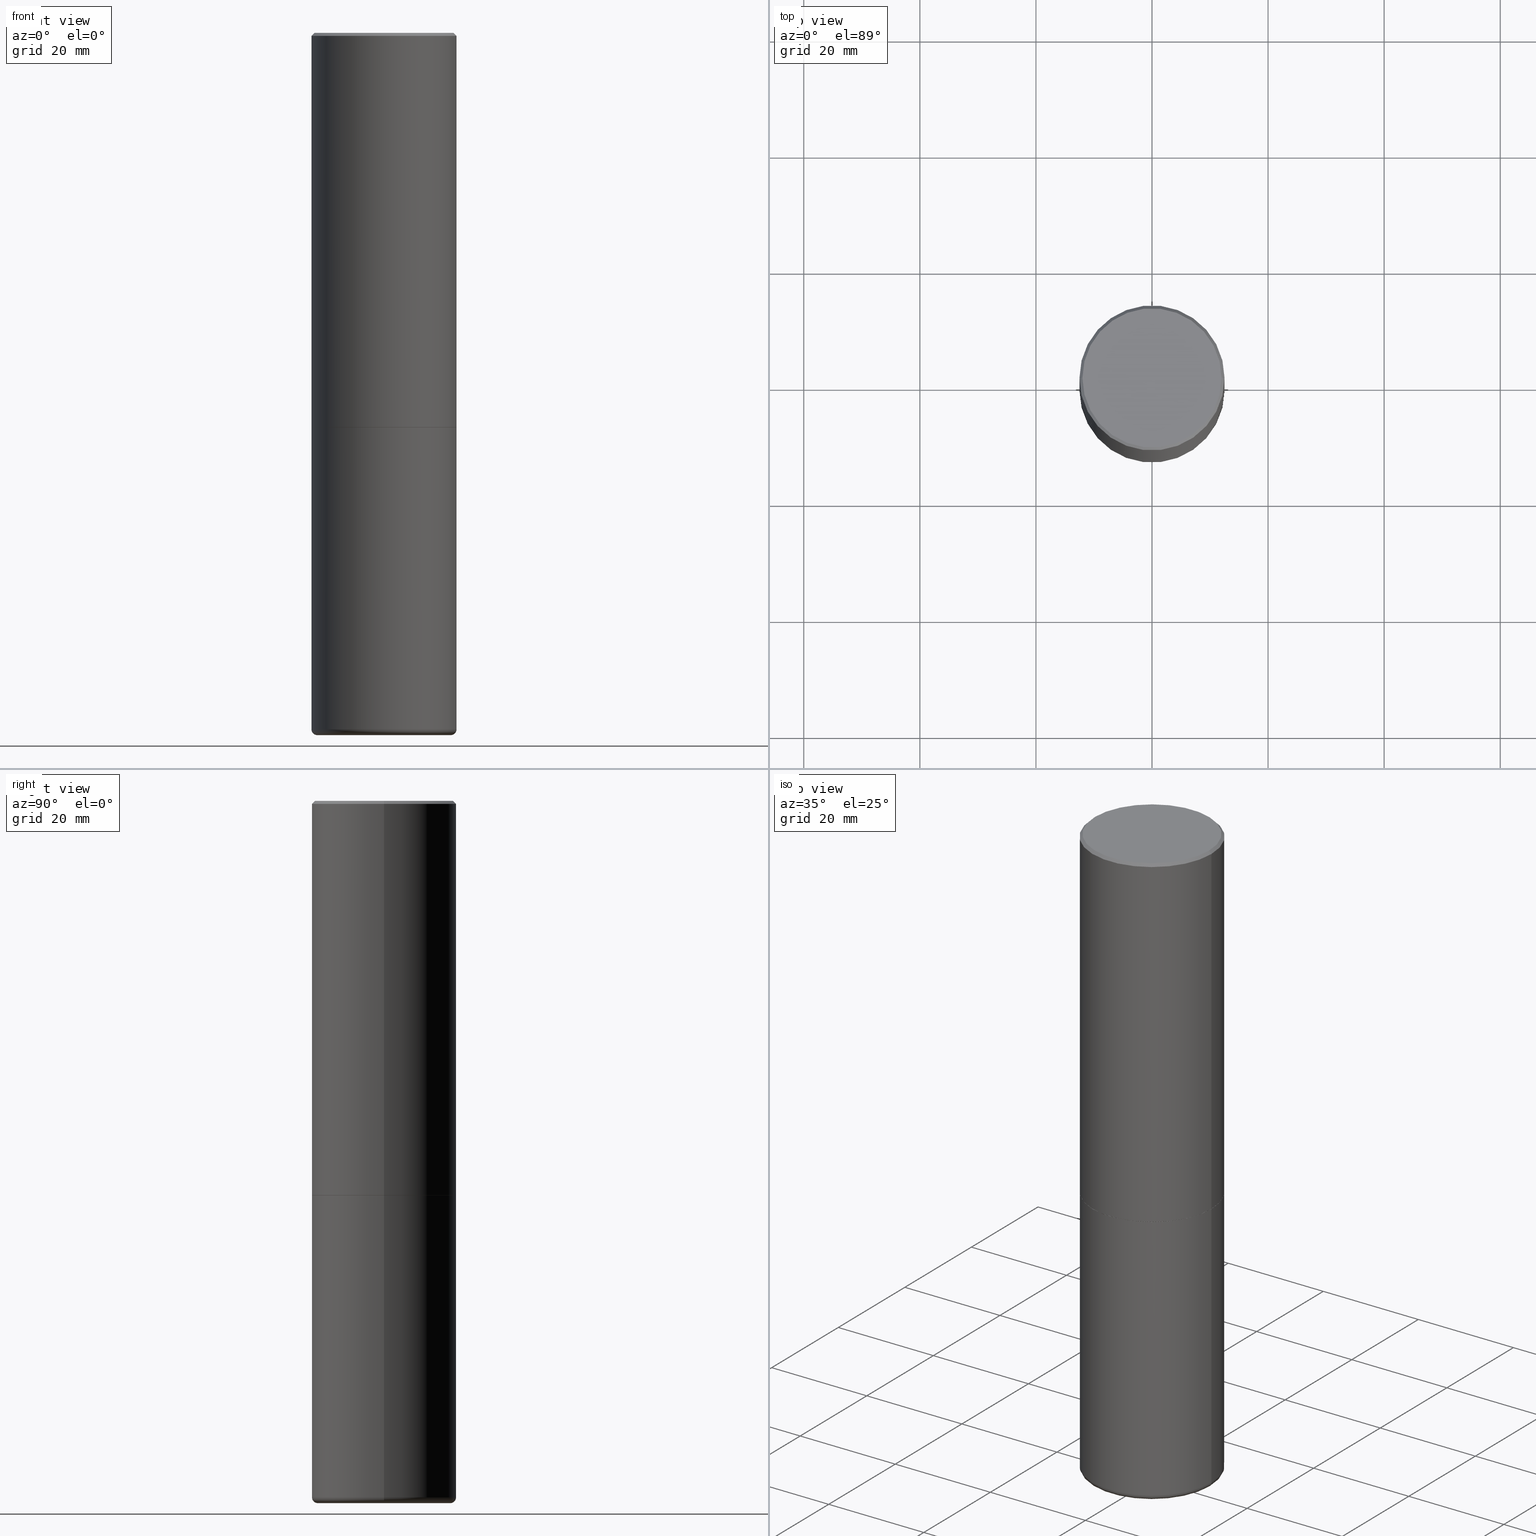
[diagram: canonical four-view strip — front | top / right | iso, engineering-drawing reading convention]
A machine part, canonical four-view strip (front | top / right | iso — engineering-drawing reading convention). The complete STEP part file that produces these views, byte-faithful:
ISO-10303-21;
HEADER;
FILE_DESCRIPTION (( 'STEP AP203' ),
    '1' );
FILE_NAME ('47085.STEP',
    '2024-03-05T19:11:22',
    ( '' ),
    ( '' ),
    'SwSTEP 2.0',
    'SolidWorks 2023',
    '' );
FILE_SCHEMA (( 'CONFIG_CONTROL_DESIGN' ));
ENDSEC;

DATA;
#1 = PRODUCT_RELATED_PRODUCT_CATEGORY ( 'detail', '', ( #391 ) ) ;
#2 = DIRECTION ( 'NONE',  ( -2.445468806185136597E-29, 3.491481338843145583E-15, 1.000000000000000000 ) ) ;
#3 = AXIS2_PLACEMENT_3D ( 'NONE', #198, #6, #106 ) ;
#4 = FACE_OUTER_BOUND ( 'NONE', #144, .T. ) ;
#5 = DATE_TIME_ROLE ( 'classification_date' ) ;
#6 = DIRECTION ( 'NONE',  ( 2.438088387897960049E-29, -3.491481338843145188E-15, -1.000000000000000000 ) ) ;
#7 = EDGE_CURVE ( 'NONE', #274, #379, #411, .T. ) ;
#8 = AXIS2_PLACEMENT_3D ( 'NONE', #357, #28, #53 ) ;
#9 = SECURITY_CLASSIFICATION_LEVEL ( 'unclassified' ) ;
#10 = FACE_OUTER_BOUND ( 'NONE', #61, .T. ) ;
#11 = AXIS2_PLACEMENT_3D ( 'NONE', #130, #239, #189 ) ;
#12 = ORIENTED_EDGE ( 'NONE', *, *, #388, .T. ) ;
#13 = DIRECTION ( 'NONE',  ( 7.105427357601001859E-15, 1.000000000000000000, -3.491481338843145583E-15 ) ) ;
#14 = ORIENTED_EDGE ( 'NONE', *, *, #266, .F. ) ;
#15 = FACE_OUTER_BOUND ( 'NONE', #282, .T. ) ;
#16 = ORIENTED_EDGE ( 'NONE', *, *, #108, .T. ) ;
#17 = CARTESIAN_POINT ( 'NONE',  ( 6.547009087918846705E-29, -9.347393840350866318E-15, -2.677199999999999580 ) ) ;
#18 = AXIS2_PLACEMENT_3D ( 'NONE', #47, #276, #230 ) ;
#19 = ORGANIZATION ( 'UNSPECIFIED', 'UNSPECIFIED', '' ) ;
#20 = CARTESIAN_POINT ( 'NONE',  ( 1.164972429890475298E-28, -1.663271880198097531E-14, -4.763799999999999812 ) ) ;
#21 = ORIENTED_EDGE ( 'NONE', *, *, #343, .T. ) ;
#22 = ADVANCED_FACE ( 'NONE', ( #10 ), #139, .T. ) ;
#23 = CARTESIAN_POINT ( 'NONE',  ( -0.4921499999999999764, -1.299821836318722241E-14, -4.724399999999999267 ) ) ;
#24 = ORIENTED_EDGE ( 'NONE', *, *, #273, .T. ) ;
#25 = ORIENTED_EDGE ( 'NONE', *, *, #261, .T. ) ;
#26 = EDGE_CURVE ( 'NONE', #81, #330, #170, .T. ) ;
#27 = PRODUCT_DEFINITION ( 'UNKNOWN', '', #397, #305 ) ;
#28 = DIRECTION ( 'NONE',  ( -2.445468806185136597E-29, 3.491481338843145583E-15, 1.000000000000000000 ) ) ;
#29 = FACE_OUTER_BOUND ( 'NONE', #400, .T. ) ;
#30 = EDGE_CURVE ( 'NONE', #274, #63, #105, .T. ) ;
#31 = VERTEX_POINT ( 'NONE', #135 ) ;
#32 = CARTESIAN_POINT ( 'NONE',  ( 0.4921500000000000874, -3.436665081823296565E-15, 2.399810400207970163E-29 ) ) ;
#33 = AXIS2_PLACEMENT_3D ( 'NONE', #409, #212, #142 ) ;
#34 = ORIENTED_EDGE ( 'NONE', *, *, #7, .T. ) ;
#35 = AXIS2_PLACEMENT_3D ( 'NONE', #20, #150, #57 ) ;
#36 = FACE_OUTER_BOUND ( 'NONE', #335, .T. ) ;
#37 = COORDINATED_UNIVERSAL_TIME_OFFSET ( 5, 0, .BEHIND. ) ;
#38 = DIRECTION ( 'NONE',  ( -2.445468806185136597E-29, 3.491481338843145583E-15, 1.000000000000000000 ) ) ;
#39 = DIRECTION ( 'NONE',  ( -2.445468806185136877E-29, 3.491481338843145188E-15, 1.000000000000000000 ) ) ;
#40 = DIRECTION ( 'NONE',  ( -2.445468806185136877E-29, 3.491481338843145188E-15, 1.000000000000000000 ) ) ;
#41 = CALENDAR_DATE ( 2024, 5, 3 ) ;
#42 = CARTESIAN_POINT ( 'NONE',  ( -0.4921499999999999764, 3.366835455046432478E-15, -0.02000000000000010797 ) ) ;
#43 = CARTESIAN_POINT ( 'NONE',  ( 6.547009087918847826E-29, -9.347393840350869473E-15, -2.677200000000000024 ) ) ;
#44 = CARTESIAN_POINT ( 'NONE',  ( -0.4911499999999999755, -5.857563193665136796E-15, -2.677200000000000024 ) ) ;
#45 = VECTOR ( 'NONE', #39, 39.37007874015748143 ) ;
#46 = EDGE_LOOP ( 'NONE', ( #115, #309, #186, #373 ) ) ;
#47 = CARTESIAN_POINT ( 'NONE',  ( 0.4527499999999999858, -1.965669078955301187E-14, -4.724399999999999267 ) ) ;
#48 = ORIENTED_EDGE ( 'NONE', *, *, #74, .T. ) ;
#49 = VECTOR ( 'NONE', #297, 39.37007874015748143 ) ;
#50 = LOCAL_TIME ( 14, 11, 22.00000000000000000, #299 ) ;
#51 = DIRECTION ( 'NONE',  ( -2.445468806185136597E-29, 3.491481338843145583E-15, 1.000000000000000000 ) ) ;
#52 = DIRECTION ( 'NONE',  ( 1.000000000000000000, -6.982962677686261977E-15, 0.000000000000000000 ) ) ;
#53 = DIRECTION ( 'NONE',  ( 1.000000000000000000, -6.982962677686265922E-15, 4.876176775795935793E-29 ) ) ;
#54 = FACE_OUTER_BOUND ( 'NONE', #234, .T. ) ;
#55 = VERTEX_POINT ( 'NONE', #334 ) ;
#56 = AXIS2_PLACEMENT_3D ( 'NONE', #383, #277, #414 ) ;
#57 = DIRECTION ( 'NONE',  ( -1.000000000000000000, 6.982962677686265922E-15, -4.876176775795935793E-29 ) ) ;
#58 = ORIENTED_EDGE ( 'NONE', *, *, #343, .F. ) ;
#59 = ORIENTED_EDGE ( 'NONE', *, *, #296, .F. ) ;
#60 = DIRECTION ( 'NONE',  ( 1.000000000000000000, -6.982962677686268288E-15, 0.000000000000000000 ) ) ;
#61 = EDGE_LOOP ( 'NONE', ( #372, #34, #337, #236 ) ) ;
#62 = AXIS2_PLACEMENT_3D ( 'NONE', #368, #164, #402 ) ;
#63 = VERTEX_POINT ( 'NONE', #42 ) ;
#64 = COORDINATED_UNIVERSAL_TIME_OFFSET ( 5, 0, .BEHIND. ) ;
#65 = EDGE_CURVE ( 'NONE', #63, #187, #340, .T. ) ;
#66 = DATE_AND_TIME ( #356, #267 ) ;
#67 = CARTESIAN_POINT ( 'NONE',  ( -0.4911499999999999755, -5.852264739316912816E-15, -2.677200000000000024 ) ) ;
#68 = CARTESIAN_POINT ( 'NONE',  ( 6.544563619112662223E-29, -9.343902359012024888E-15, -2.676199999999999690 ) ) ;
#69 = DIRECTION ( 'NONE',  ( 1.000000000000000000, -6.982962677686265922E-15, 4.876176775795935793E-29 ) ) ;
#70 = CALENDAR_DATE ( 2024, 5, 3 ) ;
#71 = AXIS2_PLACEMENT_3D ( 'NONE', #210, #51, #52 ) ;
#72 = COORDINATED_UNIVERSAL_TIME_OFFSET ( 5, 0, .BEHIND. ) ;
#73 = DATE_AND_TIME ( #41, #253 ) ;
#74 = EDGE_CURVE ( 'NONE', #330, #81, #326, .T. ) ;
#75 = DIRECTION ( 'NONE',  ( 1.000000000000000000, -6.982962677686265922E-15, 4.876176775795935793E-29 ) ) ;
#76 = CARTESIAN_POINT ( 'NONE',  ( 0.000000000000000000, 0.000000000000000000, 0.000000000000000000 ) ) ;
#77 = COORDINATED_UNIVERSAL_TIME_OFFSET ( 5, 0, .BEHIND. ) ;
#78 = CARTESIAN_POINT ( 'NONE',  ( 0.4911499999999999755, -1.277707595949647924E-14, -2.677200000000000024 ) ) ;
#79 = CIRCLE ( 'NONE', #275, 0.4921499999999999764 ) ;
#80 = PERSON_AND_ORGANIZATION ( #156, #19 ) ;
#81 = VERTEX_POINT ( 'NONE', #294 ) ;
#82 = DIRECTION ( 'NONE',  ( 1.000000000000000000, -6.982962677686265922E-15, 0.000000000000000000 ) ) ;
#83 = ORIENTED_EDGE ( 'NONE', *, *, #386, .F. ) ;
#84 = ORIENTED_EDGE ( 'NONE', *, *, #65, .T. ) ;
#85 = CC_DESIGN_PERSON_AND_ORGANIZATION_ASSIGNMENT ( #159, #286, ( #27 ) ) ;
#86 = CARTESIAN_POINT ( 'NONE',  ( 0.4921499999999999764, -3.436665081823295777E-15, 2.399810400207969603E-29 ) ) ;
#87 = CONICAL_SURFACE ( 'NONE', #396, 0.4921499999999999764, 0.7853981633974471688 ) ;
#88 = EDGE_LOOP ( 'NONE', ( #306, #301, #24, #215 ) ) ;
#89 = APPROVAL ( #124, 'UNSPECIFIED' ) ;
#90 = CARTESIAN_POINT ( 'NONE',  ( 4.890937612370299433E-31, -6.982962677686328587E-17, -0.02000000000000010797 ) ) ;
#91 = ORIENTED_EDGE ( 'NONE', *, *, #349, .T. ) ;
#92 = CIRCLE ( 'NONE', #279, 0.4921499999999999764 ) ;
#93 = AXIS2_PLACEMENT_3D ( 'NONE', #76, #129, #201 ) ;
#94 = DIRECTION ( 'NONE',  ( 1.000000000000000000, -6.982962677686265133E-15, 0.000000000000000000 ) ) ;
#95 = ORIENTED_EDGE ( 'NONE', *, *, #388, .F. ) ;
#96 = DIRECTION ( 'NONE',  ( 1.000000000000000000, -6.982962677686268288E-15, 0.000000000000000000 ) ) ;
#97 = EDGE_CURVE ( 'NONE', #231, #379, #147, .T. ) ;
#98 = ORIENTED_EDGE ( 'NONE', *, *, #382, .T. ) ;
#99 = AXIS2_PLACEMENT_3D ( 'NONE', #43, #229, #263 ) ;
#100 = DIRECTION ( 'NONE',  ( 1.000000000000000000, 0.000000000000000000, 0.000000000000000000 ) ) ;
#101 = DIRECTION ( 'NONE',  ( -1.000000000000000000, 6.982962677686265922E-15, 0.000000000000000000 ) ) ;
#102 = DIRECTION ( 'NONE',  ( 1.000000000000000000, -6.982962677686265922E-15, 0.000000000000000000 ) ) ;
#103 = ADVANCED_FACE ( 'NONE', ( #228 ), #300, .T. ) ;
#104 = FACE_OUTER_BOUND ( 'NONE', #250, .T. ) ;
#105 = LINE ( 'NONE', #362, #45 ) ;
#106 = DIRECTION ( 'NONE',  ( -1.000000000000000000, 6.982962677686265922E-15, -4.876176775795935793E-29 ) ) ;
#107 = CC_DESIGN_APPROVAL ( #378, ( #122 ) ) ;
#108 = EDGE_CURVE ( 'NONE', #347, #408, #404, .T. ) ;
#109 = CYLINDRICAL_SURFACE ( 'NONE', #93, 0.4921499999999999764 ) ;
#110 = EDGE_CURVE ( 'NONE', #31, #408, #92, .T. ) ;
#111 = DIRECTION ( 'NONE',  ( 1.000000000000000000, -6.982962677686269077E-15, 4.883557194083114022E-29 ) ) ;
#112 = VECTOR ( 'NONE', #195, 39.37007874015748854 ) ;
#113 = EDGE_LOOP ( 'NONE', ( #98, #16, #316, #317 ) ) ;
#114 = LINE ( 'NONE', #86, #120 ) ;
#115 = ORIENTED_EDGE ( 'NONE', *, *, #110, .T. ) ;
#116 = AXIS2_PLACEMENT_3D ( 'NONE', #192, #251, #96 ) ;
#117 = ORIENTED_EDGE ( 'NONE', *, *, #97, .T. ) ;
#118 = CARTESIAN_POINT ( 'NONE',  ( -0.4921499999999999764, -9.424338064747378311E-15, -2.677199999999999580 ) ) ;
#119 = ORIENTED_EDGE ( 'NONE', *, *, #416, .F. ) ;
#120 = VECTOR ( 'NONE', #345, 39.37007874015748143 ) ;
#121 = ORIENTED_EDGE ( 'NONE', *, *, #30, .T. ) ;
#122 = SECURITY_CLASSIFICATION ( '', '', #9 ) ;
#123 = EDGE_LOOP ( 'NONE', ( #152, #121, #270, #406 ) ) ;
#124 = APPROVAL_STATUS ( 'not_yet_approved' ) ;
#125 = DIRECTION ( 'NONE',  ( -0.7071067811865466846, 2.468850131082247989E-15, -0.7071067811865483499 ) ) ;
#126 = CLOSED_SHELL ( 'NONE', ( #190, #205, #243, #167, #22, #175, #247, #311 ) ) ;
#127 = DIRECTION ( 'NONE',  ( -2.445468806185136597E-29, 3.491481338843145583E-15, 1.000000000000000000 ) ) ;
#128 = EDGE_CURVE ( 'NONE', #381, #216, #355, .T. ) ;
#129 = DIRECTION ( 'NONE',  ( -2.445468806185136597E-29, 3.491481338843145583E-15, 1.000000000000000000 ) ) ;
#130 = CARTESIAN_POINT ( 'NONE',  ( 0.000000000000000000, 0.000000000000000000, 0.000000000000000000 ) ) ;
#131 = EDGE_CURVE ( 'NONE', #31, #81, #114, .T. ) ;
#132 = DATE_AND_TIME ( #70, #384 ) ;
#133 = LINE ( 'NONE', #44, #313 ) ;
#134 = AXIS2_PLACEMENT_3D ( 'NONE', #181, #158, #60 ) ;
#135 = CARTESIAN_POINT ( 'NONE',  ( 0.4921499999999999764, -1.993181951905385030E-14, -4.724399999999999267 ) ) ;
#136 = EDGE_CURVE ( 'NONE', #408, #31, #176, .T. ) ;
#137 = PERSON_AND_ORGANIZATION ( #156, #19 ) ;
#138 = LINE ( 'NONE', #169, #49 ) ;
#139 = CYLINDRICAL_SURFACE ( 'NONE', #364, 0.4921500000000000874 ) ;
#140 = CC_DESIGN_SECURITY_CLASSIFICATION ( #122, ( #397 ) ) ;
#141 = AXIS2_PLACEMENT_3D ( 'NONE', #153, #248, #100 ) ;
#142 = DIRECTION ( 'NONE',  ( 1.000000000000000000, -6.982962677686265922E-15, 4.882029041999365698E-29 ) ) ;
#143 = APPROVAL_STATUS ( 'not_yet_approved' ) ;
#144 = EDGE_LOOP ( 'NONE', ( #318, #184, #418, #319 ) ) ;
#145 = DIRECTION ( 'NONE',  ( 2.438088387897960049E-29, -3.491481338843145188E-15, -1.000000000000000000 ) ) ;
#146 = DIRECTION ( 'NONE',  ( 0.7071067811865466846, -7.319954787623252890E-15, -0.7071067811865483499 ) ) ;
#147 = LINE ( 'NONE', #393, #112 ) ;
#148 = VECTOR ( 'NONE', #146, 39.37007874015748143 ) ;
#149 = APPROVAL_DATE_TIME ( #344, #378 ) ;
#150 = DIRECTION ( 'NONE',  ( 2.438088387897960049E-29, -3.491481338843145188E-15, -1.000000000000000000 ) ) ;
#151 = ORIENTED_EDGE ( 'NONE', *, *, #26, .T. ) ;
#152 = ORIENTED_EDGE ( 'NONE', *, *, #416, .T. ) ;
#153 = CARTESIAN_POINT ( 'NONE',  ( 0.000000000000000000, 0.000000000000000000, 0.000000000000000000 ) ) ;
#154 = EDGE_CURVE ( 'NONE', #187, #63, #79, .T. ) ;
#155 = AXIS2_PLACEMENT_3D ( 'NONE', #208, #264, #111 ) ;
#156 = PERSON ( 'UNSPECIFIED', 'UNSPECIFIED', 'UNSPECIFIED', ('UNSPECIFIED'), ('UNSPECIFIED'), ('UNSPECIFIED') ) ;
#157 = DIRECTION ( 'NONE',  ( -2.445468806185136597E-29, 3.491481338843145583E-15, 1.000000000000000000 ) ) ;
#158 = DIRECTION ( 'NONE',  ( -2.445468806185136597E-29, 3.491481338843145583E-15, 1.000000000000000000 ) ) ;
#159 = PERSON_AND_ORGANIZATION ( #156, #19 ) ;
#160 = CARTESIAN_POINT ( 'NONE',  ( 0.4921499999999999764, -3.446223716380122349E-15, -0.02000000000000010797 ) ) ;
#161 = CARTESIAN_POINT ( 'NONE',  ( 1.164972429890475298E-28, -1.663271880198097531E-14, -4.763799999999999812 ) ) ;
#162 = CIRCLE ( 'NONE', #183, 0.4721499999999996255 ) ;
#163 =( NAMED_UNIT ( * ) SI_UNIT ( $, .STERADIAN. ) SOLID_ANGLE_UNIT ( ) );
#164 = DIRECTION ( 'NONE',  ( 2.445468806185136597E-29, -3.491481338843145583E-15, -1.000000000000000000 ) ) ;
#165 = CARTESIAN_POINT ( 'NONE',  ( -6.785034193178930130E-45, 9.687230607472910058E-31, 2.774533118565267978E-16 ) ) ;
#166 = PERSON_AND_ORGANIZATION_ROLE ( 'creator' ) ;
#167 = ADVANCED_FACE ( 'NONE', ( #15 ), #87, .T. ) ;
#168 = CIRCLE ( 'NONE', #99, 0.4911499999999999755 ) ;
#169 = CARTESIAN_POINT ( 'NONE',  ( -0.4921499999999999764, 3.496936074043332897E-15, -2.420853904668951509E-29 ) ) ;
#170 = CIRCLE ( 'NONE', #245, 0.4921499999999999764 ) ;
#171 = AXIS2_PLACEMENT_3D ( 'NONE', #161, #242, #174 ) ;
#172 = CARTESIAN_POINT ( 'NONE',  ( 4.890937612370299433E-31, -6.982962677686328587E-17, -0.02000000000000010797 ) ) ;
#173 = DIRECTION ( 'NONE',  ( 1.000000000000000000, -6.982962677686265922E-15, 0.000000000000000000 ) ) ;
#174 = DIRECTION ( 'NONE',  ( 1.000000000000000000, -6.982962677686265133E-15, 0.000000000000000000 ) ) ;
#175 = ADVANCED_FACE ( 'NONE', ( #249 ), #320, .T. ) ;
#176 = CIRCLE ( 'NONE', #71, 0.4921499999999999764 ) ;
#177 = CIRCLE ( 'NONE', #314, 0.4527499999999999858 ) ;
#178 = ORIENTED_EDGE ( 'NONE', *, *, #349, .F. ) ;
#179 = PERSON_AND_ORGANIZATION ( #156, #19 ) ;
#180 = LENGTH_MEASURE_WITH_UNIT ( LENGTH_MEASURE( 0.02539999999999999897 ), #351 );
#181 = CARTESIAN_POINT ( 'NONE',  ( 6.547009087918847826E-29, -9.347393840350869473E-15, -2.677200000000000024 ) ) ;
#182 = AXIS2_PLACEMENT_3D ( 'NONE', #17, #145, #394 ) ;
#183 = AXIS2_PLACEMENT_3D ( 'NONE', #165, #328, #288 ) ;
#184 = ORIENTED_EDGE ( 'NONE', *, *, #136, .T. ) ;
#185 = CC_DESIGN_PERSON_AND_ORGANIZATION_ASSIGNMENT ( #179, #281, ( #391 ) ) ;
#186 = ORIENTED_EDGE ( 'NONE', *, *, #26, .F. ) ;
#187 = VERTEX_POINT ( 'NONE', #160 ) ;
#188 = MANIFOLD_SOLID_BREP ( 'Body-Move/Copy2[1]', #377 ) ;
#189 = DIRECTION ( 'NONE',  ( 1.000000000000000000, -6.982962677686265922E-15, 4.876176775795935793E-29 ) ) ;
#190 = ADVANCED_FACE ( 'NONE', ( #346 ), #332, .T. ) ;
#191 =( CONVERSION_BASED_UNIT ( 'INCH', #180 ) LENGTH_UNIT ( ) NAMED_UNIT ( #312 ) );
#192 = CARTESIAN_POINT ( 'NONE',  ( 6.547009087918847826E-29, -9.347393840350869473E-15, -2.677200000000000024 ) ) ;
#193 = AXIS2_PLACEMENT_3D ( 'NONE', #412, #13, #207 ) ;
#194 = AXIS2_PLACEMENT_3D ( 'NONE', #366, #127, #399 ) ;
#195 = DIRECTION ( 'NONE',  ( 0.7071067811865474617, -2.468850131082256666E-15, 0.7071067811865474617 ) ) ;
#196 = CC_DESIGN_DATE_AND_TIME_ASSIGNMENT ( #295, #5, ( #122 ) ) ;
#197 = CARTESIAN_POINT ( 'NONE',  ( 6.547009087918847826E-29, -9.347393840350869473E-15, -2.677200000000000024 ) ) ;
#198 = CARTESIAN_POINT ( 'NONE',  ( 3.297005828269567997E-15, 0.4721499999999996255, -1.509776258206526442E-15 ) ) ;
#199 = APPROVAL_DATE_TIME ( #73, #218 ) ;
#200 = FACE_OUTER_BOUND ( 'NONE', #213, .T. ) ;
#201 = DIRECTION ( 'NONE',  ( 1.000000000000000000, -6.982962677686265922E-15, 4.876176775795935793E-29 ) ) ;
#202 = CALENDAR_DATE ( 2024, 5, 3 ) ;
#203 = CIRCLE ( 'NONE', #18, 0.03940000000000005997 ) ;
#204 = APPROVAL_PERSON_ORGANIZATION ( #367, #218, #232 ) ;
#205 = ADVANCED_FACE ( 'NONE', ( #322 ), #390, .T. ) ;
#206 = EDGE_LOOP ( 'NONE', ( #21, #25, #119, #385 ) ) ;
#207 = DIRECTION ( 'NONE',  ( -1.000000000000000000, 7.105427357601014480E-15, 0.000000000000000000 ) ) ;
#208 = CARTESIAN_POINT ( 'NONE',  ( 1.155337282794105951E-28, -1.649515443723055610E-14, -4.724399999999999267 ) ) ;
#209 = CARTESIAN_POINT ( 'NONE',  ( 0.4921500000000003094, -1.278056744083532224E-14, -2.676199999999999690 ) ) ;
#210 = CARTESIAN_POINT ( 'NONE',  ( 1.155337282794105951E-28, -1.649515443723055610E-14, -4.724399999999999267 ) ) ;
#211 = VERTEX_POINT ( 'NONE', #67 ) ;
#212 = DIRECTION ( 'NONE',  ( -2.445468806185136597E-29, 3.491481338843145583E-15, 1.000000000000000000 ) ) ;
#213 = EDGE_LOOP ( 'NONE', ( #58, #14 ) ) ;
#214 = CARTESIAN_POINT ( 'NONE',  ( 1.164972429890475298E-28, -1.663271880198097531E-14, -4.763799999999999812 ) ) ;
#215 = ORIENTED_EDGE ( 'NONE', *, *, #136, .F. ) ;
#216 = VERTEX_POINT ( 'NONE', #287 ) ;
#217 = AXIS2_PLACEMENT_3D ( 'NONE', #90, #348, #102 ) ;
#218 = APPROVAL ( #403, 'UNSPECIFIED' ) ;
#219 = APPLICATION_PROTOCOL_DEFINITION ( 'international standard', 'config_control_design', 1994, #395 ) ;
#220 = ADVANCED_BREP_SHAPE_REPRESENTATION ( '47085', ( #188, #339, #141 ), #246 ) ;
#221 = CARTESIAN_POINT ( 'NONE',  ( 0.000000000000000000, 0.000000000000000000, 0.000000000000000000 ) ) ;
#222 = ADVANCED_FACE ( 'NONE', ( #104 ), #359, .F. ) ;
#223 = LINE ( 'NONE', #32, #252 ) ;
#224 = MECHANICAL_CONTEXT ( 'NONE', #238, 'mechanical' ) ;
#225 = FACE_OUTER_BOUND ( 'NONE', #46, .T. ) ;
#226 = CYLINDRICAL_SURFACE ( 'NONE', #11, 0.4921499999999999764 ) ;
#227 = LOCAL_TIME ( 14, 11, 22.00000000000000000, #77 ) ;
#228 = FACE_OUTER_BOUND ( 'NONE', #113, .T. ) ;
#229 = DIRECTION ( 'NONE',  ( -2.445468806185136597E-29, 3.491481338843145583E-15, 1.000000000000000000 ) ) ;
#230 = DIRECTION ( 'NONE',  ( 1.000000000000000000, -6.982962677686218590E-15, 0.000000000000000000 ) ) ;
#231 = VERTEX_POINT ( 'NONE', #78 ) ;
#232 = APPROVAL_ROLE ( '' ) ;
#233 = AXIS2_PLACEMENT_3D ( 'NONE', #197, #398, #269 ) ;
#234 = EDGE_LOOP ( 'NONE', ( #255, #83 ) ) ;
#235 = DIRECTION ( 'NONE',  ( -2.445468806185136597E-29, 3.491481338843145583E-15, 1.000000000000000000 ) ) ;
#236 = ORIENTED_EDGE ( 'NONE', *, *, #65, .F. ) ;
#237 = EDGE_CURVE ( 'NONE', #408, #330, #138, .T. ) ;
#238 = APPLICATION_CONTEXT ( 'configuration controlled 3d designs of mechanical parts and assemblies' ) ;
#239 = DIRECTION ( 'NONE',  ( -2.445468806185136597E-29, 3.491481338843145583E-15, 1.000000000000000000 ) ) ;
#240 = CC_DESIGN_PERSON_AND_ORGANIZATION_ASSIGNMENT ( #80, #166, ( #397 ) ) ;
#241 = CONICAL_SURFACE ( 'NONE', #62, 0.4921499999999999764, 0.7853981633974471688 ) ;
#242 = DIRECTION ( 'NONE',  ( -2.445468806185136597E-29, 3.491481338843145583E-15, 1.000000000000000000 ) ) ;
#243 = ADVANCED_FACE ( 'NONE', ( #36 ), #241, .T. ) ;
#244 = LINE ( 'NONE', #304, #148 ) ;
#245 = AXIS2_PLACEMENT_3D ( 'NONE', #283, #2, #268 ) ;
#246 =( GEOMETRIC_REPRESENTATION_CONTEXT ( 3 ) GLOBAL_UNCERTAINTY_ASSIGNED_CONTEXT ( ( #293 ) ) GLOBAL_UNIT_ASSIGNED_CONTEXT ( ( #191, #353, #163 ) ) REPRESENTATION_CONTEXT ( 'NONE', 'WORKASPACE' ) );
#247 = ADVANCED_FACE ( 'NONE', ( #200 ), #290, .F. ) ;
#248 = DIRECTION ( 'NONE',  ( 0.000000000000000000, 0.000000000000000000, 1.000000000000000000 ) ) ;
#249 = FACE_OUTER_BOUND ( 'NONE', #278, .T. ) ;
#250 = EDGE_LOOP ( 'NONE', ( #151, #48 ) ) ;
#251 = DIRECTION ( 'NONE',  ( -2.445468806185136597E-29, 3.491481338843145583E-15, 1.000000000000000000 ) ) ;
#252 = VECTOR ( 'NONE', #40, 39.37007874015748143 ) ;
#253 = LOCAL_TIME ( 14, 11, 22.00000000000000000, #72 ) ;
#254 = PRODUCT_DEFINITION_SHAPE ( 'NONE', 'NONE',  #27 ) ;
#255 = ORIENTED_EDGE ( 'NONE', *, *, #382, .F. ) ;
#256 = FACE_OUTER_BOUND ( 'NONE', #88, .T. ) ;
#257 = DATE_TIME_ROLE ( 'creation_date' ) ;
#258 = DIRECTION ( 'NONE',  ( -0.7071067811865474617, 7.493145998870352582E-15, 0.7071067811865474617 ) ) ;
#259 = CIRCLE ( 'NONE', #233, 0.4911499999999999755 ) ;
#260 = PERSON_AND_ORGANIZATION ( #156, #19 ) ;
#261 = EDGE_CURVE ( 'NONE', #211, #274, #133, .T. ) ;
#262 = PERSON_AND_ORGANIZATION ( #156, #19 ) ;
#263 = DIRECTION ( 'NONE',  ( 1.000000000000000000, -6.982962677686268288E-15, 0.000000000000000000 ) ) ;
#264 = DIRECTION ( 'NONE',  ( -2.445468806185136597E-29, 3.491481338843145583E-15, 1.000000000000000000 ) ) ;
#265 = CARTESIAN_POINT ( 'NONE',  ( 6.547009087918846705E-29, -9.347393840350866318E-15, -2.677199999999999580 ) ) ;
#266 = EDGE_CURVE ( 'NONE', #211, #231, #168, .T. ) ;
#267 = LOCAL_TIME ( 14, 11, 22.00000000000000000, #64 ) ;
#268 = DIRECTION ( 'NONE',  ( 1.000000000000000000, -6.982962677686265922E-15, 0.000000000000000000 ) ) ;
#269 = DIRECTION ( 'NONE',  ( 1.000000000000000000, -6.982962677686268288E-15, 0.000000000000000000 ) ) ;
#270 = ORIENTED_EDGE ( 'NONE', *, *, #154, .F. ) ;
#271 = CALENDAR_DATE ( 2024, 5, 3 ) ;
#272 = CC_DESIGN_PERSON_AND_ORGANIZATION_ASSIGNMENT ( #262, #370, ( #122 ) ) ;
#273 = EDGE_CURVE ( 'NONE', #55, #31, #203, .T. ) ;
#274 = VERTEX_POINT ( 'NONE', #401 ) ;
#275 = AXIS2_PLACEMENT_3D ( 'NONE', #172, #307, #173 ) ;
#276 = DIRECTION ( 'NONE',  ( -6.982962677686266711E-15, -1.000000000000000000, 3.491481338843145583E-15 ) ) ;
#277 = DIRECTION ( 'NONE',  ( -2.445468806185136597E-29, 3.491481338843145583E-15, 1.000000000000000000 ) ) ;
#278 = EDGE_LOOP ( 'NONE', ( #407, #375, #117, #410 ) ) ;
#279 = AXIS2_PLACEMENT_3D ( 'NONE', #376, #303, #336 ) ;
#280 = VECTOR ( 'NONE', #125, 39.37007874015748143 ) ;
#281 = PERSON_AND_ORGANIZATION_ROLE ( 'design_owner' ) ;
#282 = EDGE_LOOP ( 'NONE', ( #95, #59, #91, #84 ) ) ;
#283 = CARTESIAN_POINT ( 'NONE',  ( 6.547009087918846705E-29, -9.347393840350866318E-15, -2.677199999999999580 ) ) ;
#284 = ORIENTED_EDGE ( 'NONE', *, *, #154, .T. ) ;
#285 = LINE ( 'NONE', #374, #280 ) ;
#286 = PERSON_AND_ORGANIZATION_ROLE ( 'creator' ) ;
#287 = CARTESIAN_POINT ( 'NONE',  ( -0.4721499999999996255, 3.331920641658000829E-15, 2.774533118565036250E-16 ) ) ;
#288 = DIRECTION ( 'NONE',  ( 1.000000000000000000, -6.982962677686265922E-15, 4.882029041999365698E-29 ) ) ;
#289 = CC_DESIGN_DATE_AND_TIME_ASSIGNMENT ( #132, #257, ( #27 ) ) ;
#290 = PLANE ( 'NONE',  #292 ) ;
#291 = EDGE_CURVE ( 'NONE', #379, #187, #223, .T. ) ;
#292 = AXIS2_PLACEMENT_3D ( 'NONE', #265, #363, #75 ) ;
#293 = UNCERTAINTY_MEASURE_WITH_UNIT (LENGTH_MEASURE( 1.000000000000000082E-05 ), #191, 'distance_accuracy_value', 'NONE');
#294 = CARTESIAN_POINT ( 'NONE',  ( 0.4921499999999999764, -1.278405892217416209E-14, -2.677199999999999580 ) ) ;
#295 = DATE_AND_TIME ( #202, #227 ) ;
#296 = EDGE_CURVE ( 'NONE', #216, #381, #162, .T. ) ;
#297 = DIRECTION ( 'NONE',  ( -2.445468806185136877E-29, 3.491481338843145188E-15, 1.000000000000000000 ) ) ;
#298 = DIRECTION ( 'NONE',  ( 1.000000000000000000, -6.982962677686265922E-15, 0.000000000000000000 ) ) ;
#299 = COORDINATED_UNIVERSAL_TIME_OFFSET ( 5, 0, .BEHIND. ) ;
#300 = TOROIDAL_SURFACE ( 'NONE', #155, 0.4527499999999999858, 0.03940000000000005997 ) ;
#301 = ORIENTED_EDGE ( 'NONE', *, *, #386, .T. ) ;
#302 = CC_DESIGN_APPROVAL ( #218, ( #397 ) ) ;
#303 = DIRECTION ( 'NONE',  ( -2.445468806185136597E-29, 3.491481338843145583E-15, 1.000000000000000000 ) ) ;
#304 = CARTESIAN_POINT ( 'NONE',  ( 0.4921499999999999764, -3.446223716380122349E-15, -0.02000000000000010797 ) ) ;
#305 = DESIGN_CONTEXT ( 'detailed design', #395, 'design' ) ;
#306 = ORIENTED_EDGE ( 'NONE', *, *, #108, .F. ) ;
#307 = DIRECTION ( 'NONE',  ( -2.445468806185136597E-29, 3.491481338843145583E-15, 1.000000000000000000 ) ) ;
#308 = ORIENTED_EDGE ( 'NONE', *, *, #128, .F. ) ;
#309 = ORIENTED_EDGE ( 'NONE', *, *, #237, .T. ) ;
#310 = DIRECTION ( 'NONE',  ( -2.445468806185136597E-29, 3.491481338843145583E-15, 1.000000000000000000 ) ) ;
#311 = ADVANCED_FACE ( 'NONE', ( #29 ), #369, .F. ) ;
#312 = DIMENSIONAL_EXPONENTS ( 1.000000000000000000, 0.000000000000000000, 0.000000000000000000, 0.000000000000000000, 0.000000000000000000, 0.000000000000000000, 0.000000000000000000 ) ;
#313 = VECTOR ( 'NONE', #258, 39.37007874015748854 ) ;
#314 = AXIS2_PLACEMENT_3D ( 'NONE', #214, #310, #94 ) ;
#315 = PLANE ( 'NONE',  #35 ) ;
#316 = ORIENTED_EDGE ( 'NONE', *, *, #110, .F. ) ;
#317 = ORIENTED_EDGE ( 'NONE', *, *, #273, .F. ) ;
#318 = ORIENTED_EDGE ( 'NONE', *, *, #237, .F. ) ;
#319 = ORIENTED_EDGE ( 'NONE', *, *, #74, .F. ) ;
#320 = CONICAL_SURFACE ( 'NONE', #116, 0.4911499999999999755, 0.7853981633974482790 ) ;
#321 = APPROVAL_PERSON_ORGANIZATION ( #417, #89, #354 ) ;
#322 = FACE_OUTER_BOUND ( 'NONE', #123, .T. ) ;
#323 = APPROVAL_DATE_TIME ( #66, #89 ) ;
#324 = CARTESIAN_POINT ( 'NONE',  ( 0.4721499999999996255, -3.342703923013973791E-15, 2.774533118565500199E-16 ) ) ;
#325 = ADVANCED_FACE ( 'NONE', ( #256 ), #333, .T. ) ;
#326 = CIRCLE ( 'NONE', #371, 0.4921499999999999764 ) ;
#327 = CIRCLE ( 'NONE', #56, 0.4921500000000003094 ) ;
#328 = DIRECTION ( 'NONE',  ( -2.445468806185136597E-29, 3.491481338843145583E-15, 1.000000000000000000 ) ) ;
#329 = ADVANCED_FACE ( 'NONE', ( #4 ), #109, .T. ) ;
#330 = VERTEX_POINT ( 'NONE', #118 ) ;
#331 = PERSON_AND_ORGANIZATION_ROLE ( 'design_supplier' ) ;
#332 = CONICAL_SURFACE ( 'NONE', #134, 0.4911499999999999755, 0.7853981633974482790 ) ;
#333 = TOROIDAL_SURFACE ( 'NONE', #194, 0.4527499999999999858, 0.03940000000000005997 ) ;
#334 = CARTESIAN_POINT ( 'NONE',  ( 0.4527499999999999858, -1.979425515430343424E-14, -4.763799999999999812 ) ) ;
#335 = EDGE_LOOP ( 'NONE', ( #308, #12, #284, #178 ) ) ;
#336 = DIRECTION ( 'NONE',  ( 1.000000000000000000, -6.982962677686261977E-15, 0.000000000000000000 ) ) ;
#337 = ORIENTED_EDGE ( 'NONE', *, *, #291, .T. ) ;
#338 = ADVANCED_FACE ( 'NONE', ( #225 ), #226, .T. ) ;
#339 = MANIFOLD_SOLID_BREP ( 'Body-Move/Copy2[2]', #126 ) ;
#340 = CIRCLE ( 'NONE', #217, 0.4921499999999999764 ) ;
#341 = SHAPE_DEFINITION_REPRESENTATION ( #254, #220 ) ;
#342 = CC_DESIGN_APPROVAL ( #89, ( #27 ) ) ;
#343 = EDGE_CURVE ( 'NONE', #231, #211, #259, .T. ) ;
#344 = DATE_AND_TIME ( #271, #50 ) ;
#345 = DIRECTION ( 'NONE',  ( -2.445468806185136877E-29, 3.491481338843145188E-15, 1.000000000000000000 ) ) ;
#346 = FACE_OUTER_BOUND ( 'NONE', #206, .T. ) ;
#347 = VERTEX_POINT ( 'NONE', #360 ) ;
#348 = DIRECTION ( 'NONE',  ( -2.445468806185136597E-29, 3.491481338843145583E-15, 1.000000000000000000 ) ) ;
#349 = EDGE_CURVE ( 'NONE', #216, #63, #285, .T. ) ;
#350 = AXIS2_PLACEMENT_3D ( 'NONE', #68, #38, #298 ) ;
#351 =( LENGTH_UNIT ( ) NAMED_UNIT ( * ) SI_UNIT ( $, .METRE. ) );
#352 = CC_DESIGN_PERSON_AND_ORGANIZATION_ASSIGNMENT ( #260, #331, ( #397 ) ) ;
#353 =( NAMED_UNIT ( * ) PLANE_ANGLE_UNIT ( ) SI_UNIT ( $, .RADIAN. ) );
#354 = APPROVAL_ROLE ( '' ) ;
#355 = CIRCLE ( 'NONE', #33, 0.4721499999999996255 ) ;
#356 = CALENDAR_DATE ( 2024, 5, 3 ) ;
#357 = CARTESIAN_POINT ( 'NONE',  ( 0.000000000000000000, 0.000000000000000000, 0.000000000000000000 ) ) ;
#358 = CARTESIAN_POINT ( 'NONE',  ( 6.547009087918846705E-29, -9.347393840350866318E-15, -2.677199999999999580 ) ) ;
#359 = PLANE ( 'NONE',  #182 ) ;
#360 = CARTESIAN_POINT ( 'NONE',  ( -0.4527499999999999858, -1.320697746450717212E-14, -4.763799999999999812 ) ) ;
#361 = ORIENTED_EDGE ( 'NONE', *, *, #296, .T. ) ;
#362 = CARTESIAN_POINT ( 'NONE',  ( -0.4921500000000000874, 3.496936074043333686E-15, -2.420853904668952350E-29 ) ) ;
#363 = DIRECTION ( 'NONE',  ( -2.438088387897960049E-29, 3.491481338843145188E-15, 1.000000000000000000 ) ) ;
#364 = AXIS2_PLACEMENT_3D ( 'NONE', #221, #157, #69 ) ;
#365 = APPROVAL_PERSON_ORGANIZATION ( #137, #378, #405 ) ;
#366 = CARTESIAN_POINT ( 'NONE',  ( 1.155337282794105951E-28, -1.649515443723055610E-14, -4.724399999999999267 ) ) ;
#367 = PERSON_AND_ORGANIZATION ( #156, #19 ) ;
#368 = CARTESIAN_POINT ( 'NONE',  ( 4.890937612370299433E-31, -6.982962677686328587E-17, -0.02000000000000010797 ) ) ;
#369 = PLANE ( 'NONE',  #3 ) ;
#370 = PERSON_AND_ORGANIZATION_ROLE ( 'classification_officer' ) ;
#371 = AXIS2_PLACEMENT_3D ( 'NONE', #358, #235, #82 ) ;
#372 = ORIENTED_EDGE ( 'NONE', *, *, #30, .F. ) ;
#373 = ORIENTED_EDGE ( 'NONE', *, *, #131, .F. ) ;
#374 = CARTESIAN_POINT ( 'NONE',  ( -0.4921499999999999764, 3.366835455046432478E-15, -0.02000000000000010797 ) ) ;
#375 = ORIENTED_EDGE ( 'NONE', *, *, #266, .T. ) ;
#376 = CARTESIAN_POINT ( 'NONE',  ( 1.155337282794105951E-28, -1.649515443723055610E-14, -4.724399999999999267 ) ) ;
#377 = CLOSED_SHELL ( 'NONE', ( #338, #103, #222, #329, #325, #413 ) ) ;
#378 = APPROVAL ( #143, 'UNSPECIFIED' ) ;
#379 = VERTEX_POINT ( 'NONE', #209 ) ;
#380 = CARTESIAN_POINT ( 'NONE',  ( 4.890937612370299433E-31, -6.982962677686328587E-17, -0.02000000000000010797 ) ) ;
#381 = VERTEX_POINT ( 'NONE', #324 ) ;
#382 = EDGE_CURVE ( 'NONE', #55, #347, #389, .T. ) ;
#383 = CARTESIAN_POINT ( 'NONE',  ( 6.544563619112662223E-29, -9.343902359012024888E-15, -2.676199999999999690 ) ) ;
#384 = LOCAL_TIME ( 14, 11, 22.00000000000000000, #37 ) ;
#385 = ORIENTED_EDGE ( 'NONE', *, *, #97, .F. ) ;
#386 = EDGE_CURVE ( 'NONE', #347, #55, #177, .T. ) ;
#387 = APPLICATION_PROTOCOL_DEFINITION ( 'international standard', 'config_control_design', 1994, #238 ) ;
#388 = EDGE_CURVE ( 'NONE', #381, #187, #244, .T. ) ;
#389 = CIRCLE ( 'NONE', #171, 0.4527499999999999858 ) ;
#390 = CYLINDRICAL_SURFACE ( 'NONE', #8, 0.4921500000000000874 ) ;
#391 = PRODUCT ( '47085', '47085', '', ( #224 ) ) ;
#392 = DIRECTION ( 'NONE',  ( 2.445468806185136597E-29, -3.491481338843145583E-15, -1.000000000000000000 ) ) ;
#393 = CARTESIAN_POINT ( 'NONE',  ( 0.4911499999999999755, -1.277707595949647924E-14, -2.677200000000000024 ) ) ;
#394 = DIRECTION ( 'NONE',  ( -1.000000000000000000, 6.982962677686265922E-15, -4.876176775795935793E-29 ) ) ;
#395 = APPLICATION_CONTEXT ( 'configuration controlled 3d designs of mechanical parts and assemblies' ) ;
#396 = AXIS2_PLACEMENT_3D ( 'NONE', #380, #392, #101 ) ;
#397 = PRODUCT_DEFINITION_FORMATION_WITH_SPECIFIED_SOURCE ( 'ANY', '', #391, .NOT_KNOWN. ) ;
#398 = DIRECTION ( 'NONE',  ( -2.445468806185136597E-29, 3.491481338843145583E-15, 1.000000000000000000 ) ) ;
#399 = DIRECTION ( 'NONE',  ( 1.000000000000000000, -6.982962677686269077E-15, 4.883557194083114022E-29 ) ) ;
#400 = EDGE_LOOP ( 'NONE', ( #361, #415 ) ) ;
#401 = CARTESIAN_POINT ( 'NONE',  ( -0.4921500000000003094, -1.209929918851106266E-15, -2.676199999999999690 ) ) ;
#402 = DIRECTION ( 'NONE',  ( -1.000000000000000000, 6.982962677686265922E-15, 0.000000000000000000 ) ) ;
#403 = APPROVAL_STATUS ( 'not_yet_approved' ) ;
#404 = CIRCLE ( 'NONE', #193, 0.03940000000000005997 ) ;
#405 = APPROVAL_ROLE ( '' ) ;
#406 = ORIENTED_EDGE ( 'NONE', *, *, #291, .F. ) ;
#407 = ORIENTED_EDGE ( 'NONE', *, *, #261, .F. ) ;
#408 = VERTEX_POINT ( 'NONE', #23 ) ;
#409 = CARTESIAN_POINT ( 'NONE',  ( -6.785034193178930130E-45, 9.687230607472910058E-31, 2.774533118565267978E-16 ) ) ;
#410 = ORIENTED_EDGE ( 'NONE', *, *, #7, .F. ) ;
#411 = CIRCLE ( 'NONE', #350, 0.4921500000000003094 ) ;
#412 = CARTESIAN_POINT ( 'NONE',  ( -0.4527499999999999858, -1.327817220107670261E-14, -4.724399999999999267 ) ) ;
#413 = ADVANCED_FACE ( 'NONE', ( #54 ), #315, .T. ) ;
#414 = DIRECTION ( 'NONE',  ( 1.000000000000000000, -6.982962677686265922E-15, 0.000000000000000000 ) ) ;
#415 = ORIENTED_EDGE ( 'NONE', *, *, #128, .T. ) ;
#416 = EDGE_CURVE ( 'NONE', #379, #274, #327, .T. ) ;
#417 = PERSON_AND_ORGANIZATION ( #156, #19 ) ;
#418 = ORIENTED_EDGE ( 'NONE', *, *, #131, .T. ) ;
ENDSEC;
END-ISO-10303-21;
